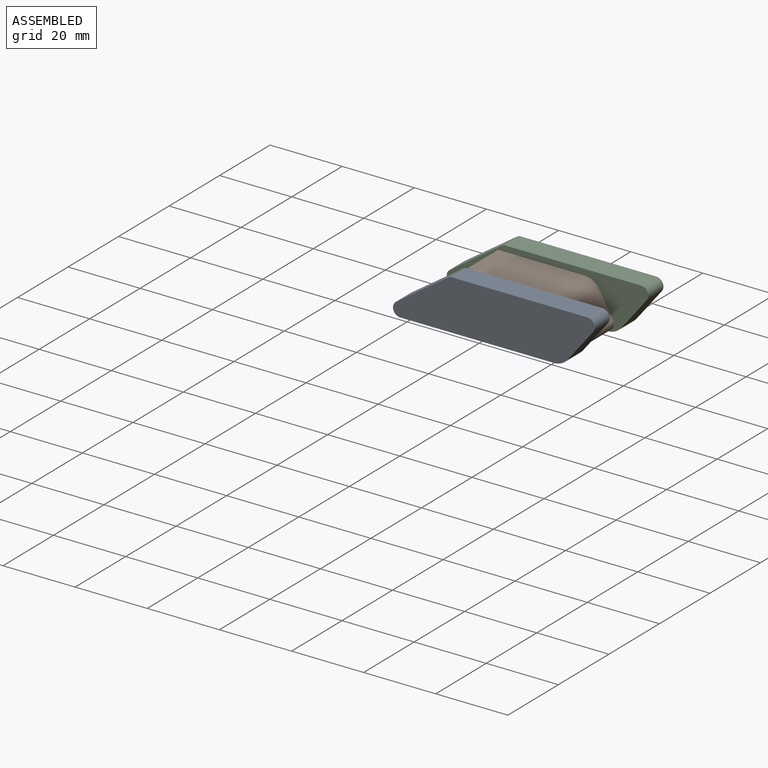
[diagram: assembled view]
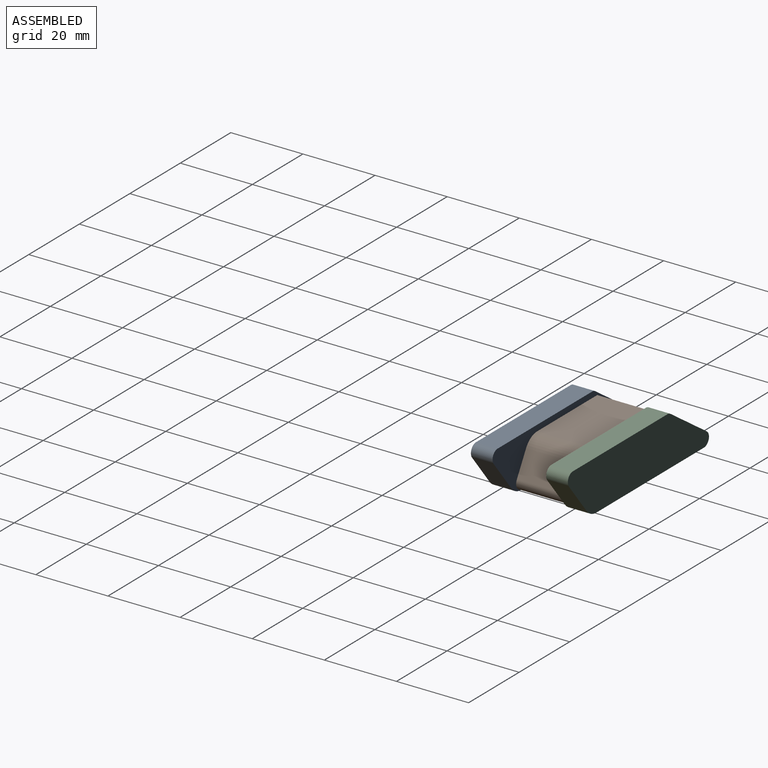
[diagram: assembled view, second angle]
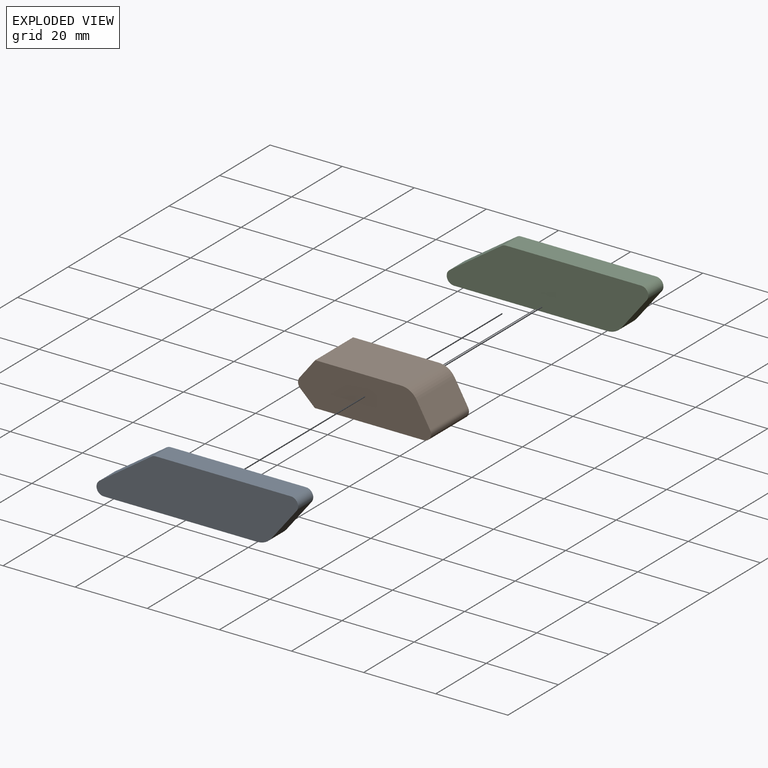
[diagram: exploded view]
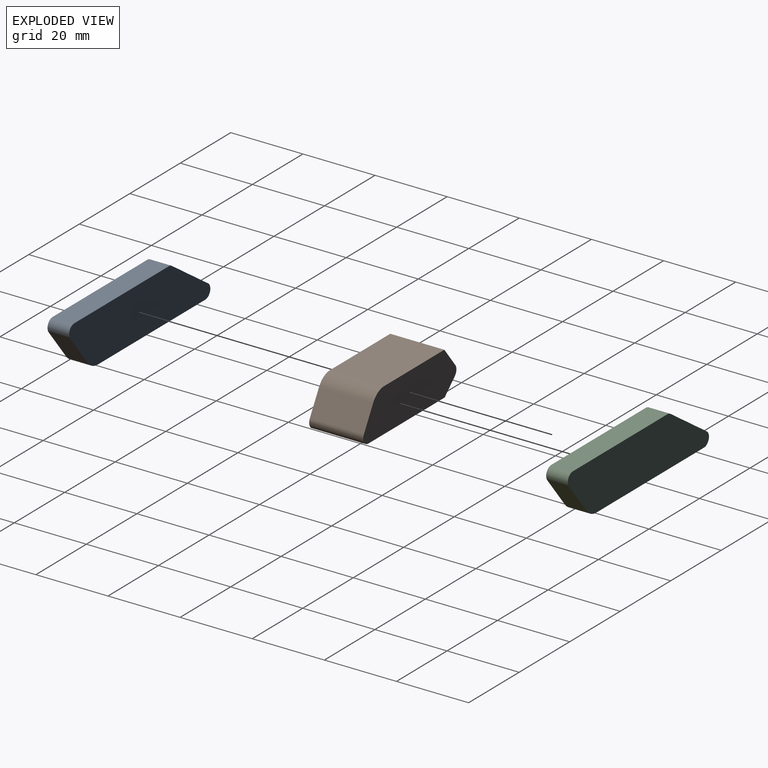
[diagram: exploded view, second angle]
ASSEMBLY  parts=3 mates=2
PART A: 10 faces, bbox 55.9x6x13.9 mm
  f0: plane 14.4x9.9mm, normal (-0.57,0,0.82), area 104.8mm2, adj f1,f7,f8,f9
  f1: cylinder r=2mm len=6mm, axis (0,1,0), area 30.5mm2, adj f0,f2,f8,f9
  f2: plane 42.57x6mm, normal (0,0,-1), area 255.4mm2, adj f1,f3,f8,f9
  f3: cylinder r=5mm len=6mm, axis (0,1,0), area 26.9mm2, adj f2,f4,f8,f9
  f4: plane 8.77x6.99mm, normal (0.78,0,-0.62), area 67.3mm2, adj f3,f5,f8,f9
  f5: cylinder r=2mm len=6mm, axis (0,1,0), area 26.9mm2, adj f4,f6,f8,f9
  f6: plane 37.51x6mm, normal (0,0,1), area 225.1mm2, adj f5,f7,f8,f9
  f7: cylinder r=2mm len=6mm, axis (0,1,0), area 7.2mm2, adj f0,f6,f8,f9
  f8: plane 55.91x13.9mm, normal (0,-1,0), area 638.6mm2, adj f0,f1,f2,f3,f4,f5,f6,f7
  f9: plane 55.91x13.9mm, normal (0,1,0), area 638.6mm2, adj f0,f1,f2,f3,f4,f5,f6,f7
PART B: 10 faces, bbox 36.9x15x12 mm
  f0: plane 23.82x15mm, normal (0,0,1), area 357.3mm2, adj f1,f7,f8,f9
  f1: cylinder r=5mm len=15mm, axis (0,1,0), area 79mm2, adj f0,f2,f8,f9
  f2: plane 15x6.5mm, normal (-0.87,0,0.49), area 112.1mm2, adj f1,f3,f8,f9
  f3: cylinder r=2mm len=15mm, axis (0,1,0), area 62.6mm2, adj f2,f4,f8,f9
  f4: plane 30.25x15mm, normal (0,0,-1), area 453.8mm2, adj f3,f5,f8,f9
  f5: plane 15x4.02mm, normal (0.69,0,-0.72), area 83.4mm2, adj f4,f6,f8,f9
  f6: cylinder r=2mm len=15mm, axis (0,1,0), area 44.4mm2, adj f5,f7,f8,f9
  f7: plane 15x5.49mm, normal (0.78,0,0.62), area 105mm2, adj f0,f6,f8,f9
  f8: plane 36.9x12.01mm, normal (0,-1,0), area 390.6mm2, adj f0,f1,f2,f3,f4,f5,f6,f7
  f9: plane 36.9x12.01mm, normal (0,1,0), area 390.6mm2, adj f0,f1,f2,f3,f4,f5,f6,f7
PART C: same geometry as A
PLACE A t=(10.3,-14.65,0.82)mm
PLACE B rot(axis=(0,0,1),180deg) t=(-9.13,-14.65,1.07)mm
PLACE C t=(10.49,6.35,0.83)mm
MATE planar B.f8 <-> C.f8  axis (0,1,0) through (-9,0.35,13.08)mm
MATE planar A.f9 <-> B.f9  axis (0,1,0) through (-0.16,-14.65,0.82)mm
